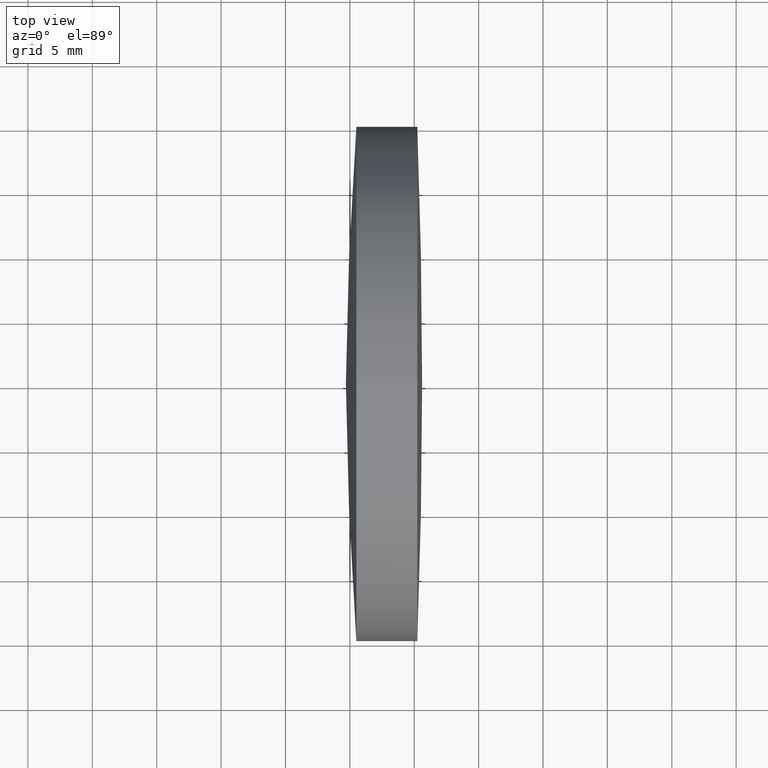
[diagram: clean part render]
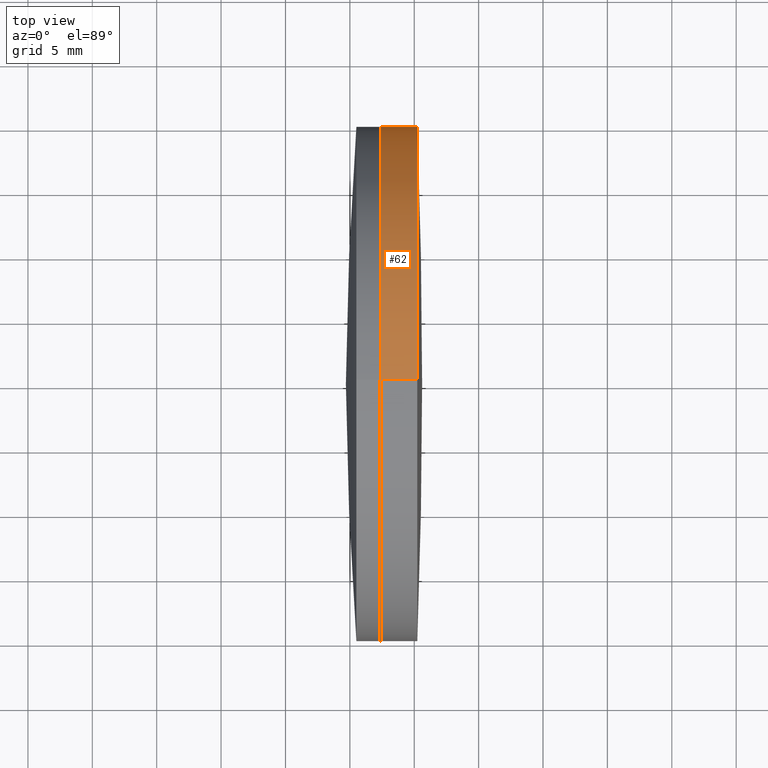
[diagram: same view with one face highlighted and labeled with its STEP entity id]
A machine part, top view. The second image highlights one B-rep face of the part: STEP entity #62.
In plain terms, the highlighted cylindrical surface (partial cylindrical patch) has radius 20 mm, axis along (-1, -0, -0).
Its self-contained STEP definition (entity closure, byte-faithful):
#6 = CARTESIAN_POINT ( 'NONE',  ( 312.3747908760627800, 0.0000000000000000000, 0.0000000000000000000 ) ) ;
#9 = AXIS2_PLACEMENT_3D ( 'NONE', #166, #187, #220 ) ;
#11 = LINE ( 'NONE', #111, #152 ) ;
#30 = EDGE_LOOP ( 'NONE', ( #103, #238, #142, #342 ) ) ;
#38 = DIRECTION ( 'NONE',  ( -1.000000000000000000, -0.0000000000000000000, -0.0000000000000000000 ) ) ;
#59 = CARTESIAN_POINT ( 'NONE',  ( 315.2376920384078900, 0.0000000000000000000, 19.99999999999996100 ) ) ;
#62 = ADVANCED_FACE ( 'NONE', ( #181 ), #178, .T. ) ;
#66 = DIRECTION ( 'NONE',  ( 0.0000000000000000000, 0.0000000000000000000, 1.000000000000000000 ) ) ;
#69 = VERTEX_POINT ( 'NONE', #83 ) ;
#70 = VECTOR ( 'NONE', #38, 1000.000000000000000 ) ;
#75 = AXIS2_PLACEMENT_3D ( 'NONE', #6, #172, #322 ) ;
#83 = CARTESIAN_POINT ( 'NONE',  ( 312.3747908760627800, 2.449293598294676900E-015, -19.99999999999989700 ) ) ;
#92 = LINE ( 'NONE', #279, #70 ) ;
#93 = CARTESIAN_POINT ( 'NONE',  ( 312.3747908760627800, 0.0000000000000000000, 19.99999999999976200 ) ) ;
#103 = ORIENTED_EDGE ( 'NONE', *, *, #107, .T. ) ;
#107 = EDGE_CURVE ( 'NONE', #216, #336, #156, .T. ) ;
#111 = CARTESIAN_POINT ( 'NONE',  ( -0.5519199926577972300, 0.0000000000000000000, 19.99999999999992900 ) ) ;
#125 = EDGE_CURVE ( 'NONE', #336, #69, #92, .T. ) ;
#142 = ORIENTED_EDGE ( 'NONE', *, *, #218, .F. ) ;
#152 = VECTOR ( 'NONE', #345, 1000.000000000000000 ) ;
#156 = CIRCLE ( 'NONE', #257, 19.99999999999996100 ) ;
#166 = CARTESIAN_POINT ( 'NONE',  ( -0.5519199926577972300, 0.0000000000000000000, 0.0000000000000000000 ) ) ;
#172 = DIRECTION ( 'NONE',  ( -1.000000000000000000, -0.0000000000000000000, -0.0000000000000000000 ) ) ;
#178 = CYLINDRICAL_SURFACE ( 'NONE', #9, 19.99999999999992900 ) ;
#181 = FACE_OUTER_BOUND ( 'NONE', #30, .T. ) ;
#187 = DIRECTION ( 'NONE',  ( -1.000000000000000000, -0.0000000000000000000, -0.0000000000000000000 ) ) ;
#205 = DIRECTION ( 'NONE',  ( -1.000000000000000000, -0.0000000000000000000, -0.0000000000000000000 ) ) ;
#216 = VERTEX_POINT ( 'NONE', #59 ) ;
#218 = EDGE_CURVE ( 'NONE', #247, #69, #285, .T. ) ;
#220 = DIRECTION ( 'NONE',  ( 0.0000000000000000000, 0.0000000000000000000, 1.000000000000000000 ) ) ;
#223 = CARTESIAN_POINT ( 'NONE',  ( 315.2376920384078900, 2.449293598294701800E-015, -19.99999999999996100 ) ) ;
#237 = CARTESIAN_POINT ( 'NONE',  ( 315.2376920384078900, 0.0000000000000000000, 0.0000000000000000000 ) ) ;
#238 = ORIENTED_EDGE ( 'NONE', *, *, #125, .T. ) ;
#247 = VERTEX_POINT ( 'NONE', #93 ) ;
#257 = AXIS2_PLACEMENT_3D ( 'NONE', #237, #205, #66 ) ;
#279 = CARTESIAN_POINT ( 'NONE',  ( -0.5519199926577972300, 2.449293598294697400E-015, -19.99999999999992900 ) ) ;
#285 = CIRCLE ( 'NONE', #75, 19.99999999999989300 ) ;
#322 = DIRECTION ( 'NONE',  ( 0.0000000000000000000, 0.0000000000000000000, 1.000000000000000000 ) ) ;
#331 = EDGE_CURVE ( 'NONE', #216, #247, #11, .T. ) ;
#336 = VERTEX_POINT ( 'NONE', #223 ) ;
#342 = ORIENTED_EDGE ( 'NONE', *, *, #331, .F. ) ;
#345 = DIRECTION ( 'NONE',  ( -1.000000000000000000, -0.0000000000000000000, -0.0000000000000000000 ) ) ;